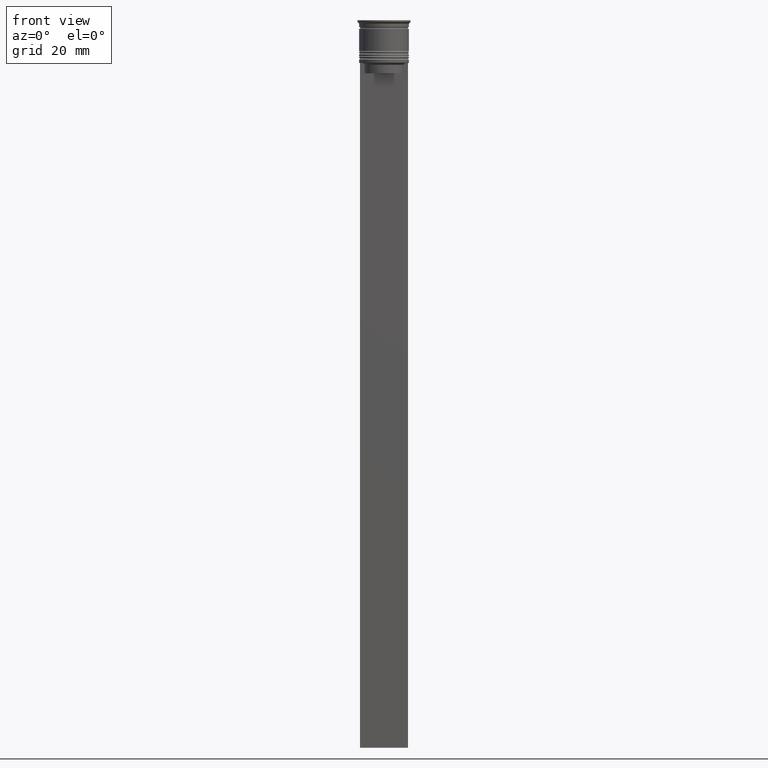
[diagram: clean part render]
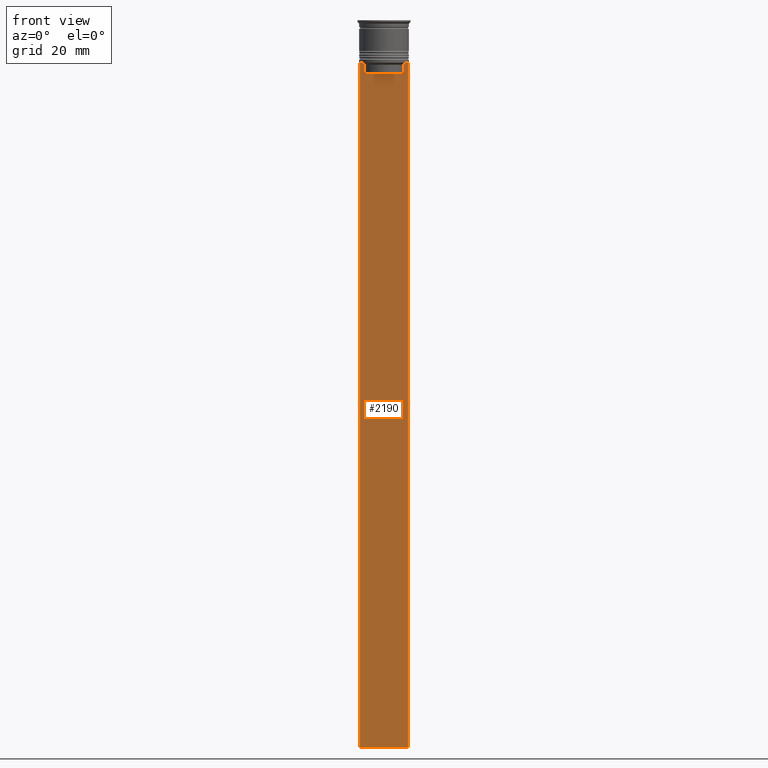
[diagram: same view with one face highlighted and labeled with its STEP entity id]
A machine part, front view. The second image highlights one B-rep face of the part: STEP entity #2190.
In plain terms, the highlighted planar face has unit normal (0, -1, -0).
Its self-contained STEP definition (entity closure, byte-faithful):
#1 = CARTESIAN_POINT ( 'NONE',  ( 5.795128760752288777, -0.5000000000000022204, -12.83336023406855375 ) ) ;
#26 = CARTESIAN_POINT ( 'NONE',  ( -6.129641098791995368, -0.5000000000000022204, -12.50000000000000000 ) ) ;
#38 = VECTOR ( 'NONE', #1033, 1000.000000000000000 ) ;
#49 = CARTESIAN_POINT ( 'NONE',  ( -5.627832620112292794, -0.5000000000000022204, -13.00000000000000000 ) ) ;
#66 = VECTOR ( 'NONE', #1852, 1000.000000000000000 ) ;
#71 = ORIENTED_EDGE ( 'NONE', *, *, #492, .F. ) ;
#82 = CARTESIAN_POINT ( 'NONE',  ( 7.000000000000012434, -0.5000000000000022204, -212.5000000000000284 ) ) ;
#124 = FACE_OUTER_BOUND ( 'NONE', #1878, .T. ) ;
#154 = VERTEX_POINT ( 'NONE', #2048 ) ;
#163 = EDGE_CURVE ( 'NONE', #1502, #678, #1599, .T. ) ;
#171 = VECTOR ( 'NONE', #1830, 1000.000000000000000 ) ;
#230 = VERTEX_POINT ( 'NONE', #895 ) ;
#248 = VERTEX_POINT ( 'NONE', #1085 ) ;
#257 = CARTESIAN_POINT ( 'NONE',  ( 7.000000000000012434, -0.5000000000000022204, 1.535668847618198329 ) ) ;
#272 = DIRECTION ( 'NONE',  ( 0.000000000000000000, 0.000000000000000000, -1.000000000000000000 ) ) ;
#291 = DIRECTION ( 'NONE',  ( 0.000000000000000000, -1.000000000000000000, -0.000000000000000000 ) ) ;
#301 = PLANE ( 'NONE',  #1797 ) ;
#382 = LINE ( 'NONE', #2196, #1903 ) ;
#384 = CARTESIAN_POINT ( 'NONE',  ( 5.962396079681182570, -0.5000000000000022204, -12.66669137279835766 ) ) ;
#436 = LINE ( 'NONE', #1151, #66 ) ;
#447 = B_SPLINE_CURVE_WITH_KNOTS ( 'NONE', 3,
 ( #26, #743, #1461, #49 ),
 .UNSPECIFIED., .F., .F.,
 ( 4, 4 ),
 ( 0.01045365750109871796, 0.01116204421161398619 ),
 .UNSPECIFIED. ) ;
#491 = VERTEX_POINT ( 'NONE', #1950 ) ;
#492 = EDGE_CURVE ( 'NONE', #2237, #676, #1742, .T. ) ;
#556 = DIRECTION ( 'NONE',  ( 1.000000000000000000, 0.000000000000000000, 0.000000000000000000 ) ) ;
#580 = EDGE_CURVE ( 'NONE', #154, #230, #382, .T. ) ;
#620 = DIRECTION ( 'NONE',  ( 0.000000000000000000, 0.000000000000000000, -1.000000000000000000 ) ) ;
#667 = CARTESIAN_POINT ( 'NONE',  ( -6.129641098791995368, -0.5000000000000022204, -12.50000000000000000 ) ) ;
#668 = EDGE_CURVE ( 'NONE', #248, #2225, #1655, .T. ) ;
#676 = VERTEX_POINT ( 'NONE', #753 ) ;
#678 = VERTEX_POINT ( 'NONE', #2031 ) ;
#740 = DIRECTION ( 'NONE',  ( -0.000000000000000000, -0.000000000000000000, 1.000000000000000000 ) ) ;
#743 = CARTESIAN_POINT ( 'NONE',  ( -5.962396146966409738, -0.5000000000000022204, -12.66669130573587054 ) ) ;
#753 = CARTESIAN_POINT ( 'NONE',  ( -6.999999999999987566, -0.5000000000000022204, -212.5000000000000284 ) ) ;
#766 = ORIENTED_EDGE ( 'NONE', *, *, #668, .F. ) ;
#895 = CARTESIAN_POINT ( 'NONE',  ( 7.000000000000012434, -0.5000000000000022204, -12.50000000000000000 ) ) ;
#918 = CARTESIAN_POINT ( 'NONE',  ( 5.627832620112292794, -0.5000000000000022204, -13.00000000000000000 ) ) ;
#959 = ORIENTED_EDGE ( 'NONE', *, *, #1182, .F. ) ;
#973 = B_SPLINE_CURVE_WITH_KNOTS ( 'NONE', 3,
 ( #918, #1, #384, #1827 ),
 .UNSPECIFIED., .F., .F.,
 ( 4, 4 ),
 ( 0.02651134470867370918, 0.02721991123504334531 ),
 .UNSPECIFIED. ) ;
#1006 = EDGE_CURVE ( 'NONE', #1114, #154, #973, .T. ) ;
#1033 = DIRECTION ( 'NONE',  ( 1.000000000000000000, 0.000000000000000000, 0.000000000000000000 ) ) ;
#1050 = DIRECTION ( 'NONE',  ( -1.000000000000000000, 0.000000000000000000, 0.000000000000000000 ) ) ;
#1062 = VECTOR ( 'NONE', #1050, 1000.000000000000000 ) ;
#1085 = CARTESIAN_POINT ( 'NONE',  ( -6.999999999999987566, -0.5000000000000022204, -12.50000000000000000 ) ) ;
#1114 = VERTEX_POINT ( 'NONE', #1680 ) ;
#1123 = LINE ( 'NONE', #1497, #1711 ) ;
#1151 = CARTESIAN_POINT ( 'NONE',  ( -6.999999999999987566, -0.5000000000000022204, 1.535668847618198329 ) ) ;
#1181 = EDGE_CURVE ( 'NONE', #248, #676, #436, .T. ) ;
#1182 = EDGE_CURVE ( 'NONE', #2225, #1502, #447, .T. ) ;
#1291 = ORIENTED_EDGE ( 'NONE', *, *, #1520, .F. ) ;
#1387 = CARTESIAN_POINT ( 'NONE',  ( 0.000000000000000000, -0.5000000000000022204, -15.50000000000000000 ) ) ;
#1412 = ORIENTED_EDGE ( 'NONE', *, *, #1787, .F. ) ;
#1461 = CARTESIAN_POINT ( 'NONE',  ( -5.795128834036803234, -0.5000000000000022204, -12.83336016107156574 ) ) ;
#1468 = ORIENTED_EDGE ( 'NONE', *, *, #1181, .T. ) ;
#1497 = CARTESIAN_POINT ( 'NONE',  ( 5.627832620112292794, -0.5000000000000022204, 0.000000000000000000 ) ) ;
#1502 = VERTEX_POINT ( 'NONE', #2340 ) ;
#1520 = EDGE_CURVE ( 'NONE', #491, #1114, #1123, .T. ) ;
#1556 = ORIENTED_EDGE ( 'NONE', *, *, #1006, .F. ) ;
#1599 = LINE ( 'NONE', #2146, #171 ) ;
#1617 = ORIENTED_EDGE ( 'NONE', *, *, #1850, .F. ) ;
#1635 = CARTESIAN_POINT ( 'NONE',  ( 7.000000000000012434, -0.5000000000000022204, -12.50000000000000000 ) ) ;
#1655 = LINE ( 'NONE', #1635, #2126 ) ;
#1680 = CARTESIAN_POINT ( 'NONE',  ( 5.627832620112292794, -0.5000000000000022204, -13.00000000000000000 ) ) ;
#1699 = VECTOR ( 'NONE', #620, 1000.000000000000000 ) ;
#1705 = CARTESIAN_POINT ( 'NONE',  ( 7.000000000000012434, -0.5000000000000022204, 1.535668847618198329 ) ) ;
#1711 = VECTOR ( 'NONE', #740, 1000.000000000000000 ) ;
#1742 = LINE ( 'NONE', #2295, #1062 ) ;
#1787 = EDGE_CURVE ( 'NONE', #230, #2237, #1882, .T. ) ;
#1797 = AXIS2_PLACEMENT_3D ( 'NONE', #1705, #291, #272 ) ;
#1827 = CARTESIAN_POINT ( 'NONE',  ( 6.129641098791995368, -0.5000000000000022204, -12.50000000000000000 ) ) ;
#1830 = DIRECTION ( 'NONE',  ( 0.000000000000000000, 0.000000000000000000, -1.000000000000000000 ) ) ;
#1850 = EDGE_CURVE ( 'NONE', #678, #491, #2143, .T. ) ;
#1852 = DIRECTION ( 'NONE',  ( 0.000000000000000000, 0.000000000000000000, -1.000000000000000000 ) ) ;
#1868 = ORIENTED_EDGE ( 'NONE', *, *, #163, .F. ) ;
#1878 = EDGE_LOOP ( 'NONE', ( #959, #766, #1468, #71, #1412, #1971, #1556, #1291, #1617, #1868 ) ) ;
#1882 = LINE ( 'NONE', #257, #1699 ) ;
#1903 = VECTOR ( 'NONE', #556, 1000.000000000000000 ) ;
#1950 = CARTESIAN_POINT ( 'NONE',  ( 5.627832620112292794, -0.5000000000000022204, -15.50000000000000000 ) ) ;
#1971 = ORIENTED_EDGE ( 'NONE', *, *, #580, .F. ) ;
#2008 = DIRECTION ( 'NONE',  ( 1.000000000000000000, 0.000000000000000000, 0.000000000000000000 ) ) ;
#2031 = CARTESIAN_POINT ( 'NONE',  ( -5.627832620112292794, -0.5000000000000022204, -15.50000000000000000 ) ) ;
#2048 = CARTESIAN_POINT ( 'NONE',  ( 6.129641098791995368, -0.5000000000000022204, -12.50000000000000000 ) ) ;
#2126 = VECTOR ( 'NONE', #2008, 1000.000000000000000 ) ;
#2143 = LINE ( 'NONE', #1387, #38 ) ;
#2146 = CARTESIAN_POINT ( 'NONE',  ( -5.627832620112292794, -0.5000000000000022204, 0.000000000000000000 ) ) ;
#2190 = ADVANCED_FACE ( 'NONE', ( #124 ), #301, .T. ) ;
#2196 = CARTESIAN_POINT ( 'NONE',  ( 7.000000000000012434, -0.5000000000000022204, -12.50000000000000000 ) ) ;
#2225 = VERTEX_POINT ( 'NONE', #667 ) ;
#2237 = VERTEX_POINT ( 'NONE', #82 ) ;
#2295 = CARTESIAN_POINT ( 'NONE',  ( 7.000000000000012434, -0.5000000000000022204, -212.5000000000000284 ) ) ;
#2340 = CARTESIAN_POINT ( 'NONE',  ( -5.627832620112292794, -0.5000000000000022204, -13.00000000000000000 ) ) ;